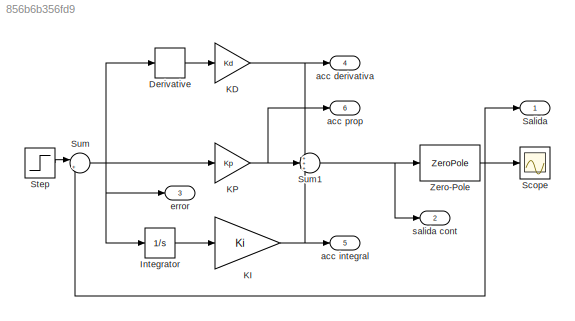
MODEL slx_856b6b356fd9
KIND model
CONFIG AbsTol = auto
CONFIG FixedStep = auto
CONFIG MaxStep = 1e-5
CONFIG MinStep = auto
CONFIG RelTol = 1e-3
CONFIG SampleTimeConstraint = Unconstrained
CONFIG Solver = ode45
CONFIG SolverMode = Auto
CONFIG SolverName = ode45
CONFIG StartTime = 0.0
CONFIG StopTime = 10
BLOCK [Derivative] Derivative
BLOCK [Integrator] Integrator
  Ports = [1, 1]
BLOCK [Gain] KD
  Gain = Kd
  OutDataTypeStr = Inherit: Inherit via internal rule
  ParamDataTypeStr = Inherit: Inherit via internal rule
  SaturateOnIntegerOverflow = off
BLOCK [Gain] KI
  Gain = Ki
  OutDataTypeStr = Inherit: Inherit via internal rule
  ParamDataTypeStr = Inherit: Inherit via internal rule
  SaturateOnIntegerOverflow = off
BLOCK [Gain] KP
  Gain = Kp
  OutDataTypeStr = Inherit: Inherit via internal rule
  ParamDataTypeStr = Inherit: Inherit via internal rule
  SaturateOnIntegerOverflow = off
BLOCK [Outport] Salida
  IconDisplay = Port number
BLOCK [Scope] Scope
  Ports = [1]
  ScopeSpecificationString = Simulink.scopes.TimeScopeBlockCfg('CurrentConfiguration', extmgr.ConfigurationSet(extmgr.Configuration('Core','General UI',true),extmgr.Configuration('Core','Source UI',true),extmgr.Configuration('Sources','WiredSimulink',true,'DataLoggingSaveFormat','StructureWithTime','DataLoggingDecimation','1','DataLoggingDecimateData',true),extmgr.Configuration('Visuals','Time Domain',true,'SerializedDisplays...<+1992ch>
BLOCK [Step] Step
  SampleTime = T
  Time = 0
BLOCK [Sum] Sum
  IconShape = round
  InputSameDT = off
  Inputs = |+-
  OutDataTypeStr = Inherit: Inherit via internal rule
  Ports = [2, 1]
  SaturateOnIntegerOverflow = off
BLOCK [Sum] Sum1
  IconShape = round
  InputSameDT = off
  Inputs = +++
  OutDataTypeStr = Inherit: Inherit via internal rule
  Ports = [3, 1]
  SaturateOnIntegerOverflow = off
BLOCK [ZeroPole] Zero-Pole
  Gain = [K]
  Poles = [p1 p2]
  Zeros = []
BLOCK [Outport] acc derivativa
  IconDisplay = Port number
  Port = 4
BLOCK [Outport] acc integral
  IconDisplay = Port number
  Port = 5
BLOCK [Outport] acc prop
  IconDisplay = Port number
  Port = 6
BLOCK [Outport] error
  IconDisplay = Port number
  Port = 3
BLOCK [Outport] salida cont
  IconDisplay = Port number
  Port = 2
LINE Derivative:1 -> KD:1
LINE Integrator:1 -> KI:1
NET KD:1 -> Sum1:1, acc derivativa:1
NET KI:1 -> Sum1:3, acc integral:1
NET KP:1 -> Sum1:2, acc prop:1
LINE Step:1 -> Sum:1
NET Sum1:1 -> Zero-Pole:1, salida cont:1
NET Sum:1 -> Derivative:1, Integrator:1, KP:1, error:1
NET Zero-Pole:1 -> Salida:1, Scope:1, Sum:2
note: NET lines group one-source signal fan-out (src -> all destinations, sorted); 1:1 wires keep LINE
